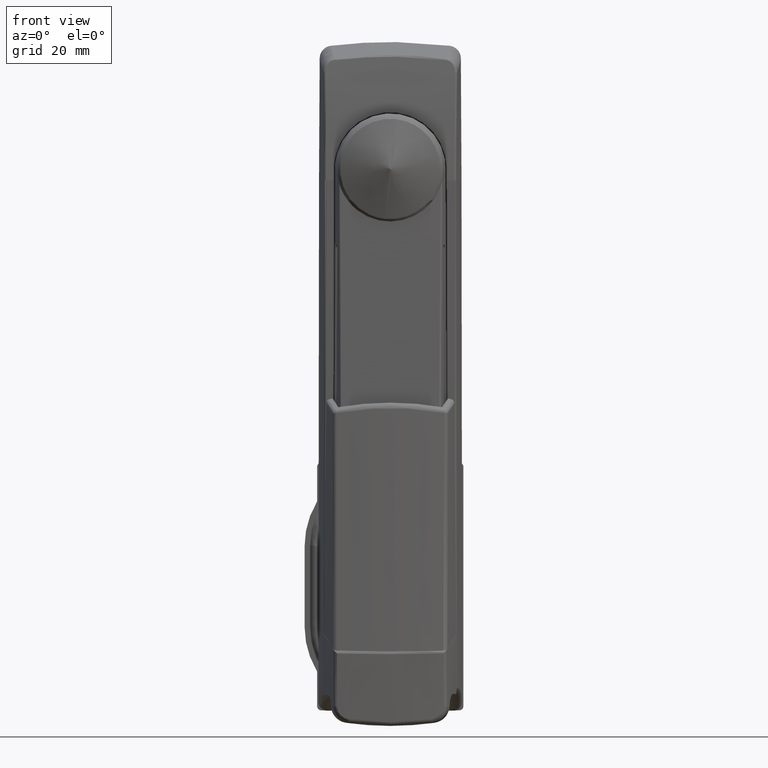
[diagram: clean part render]
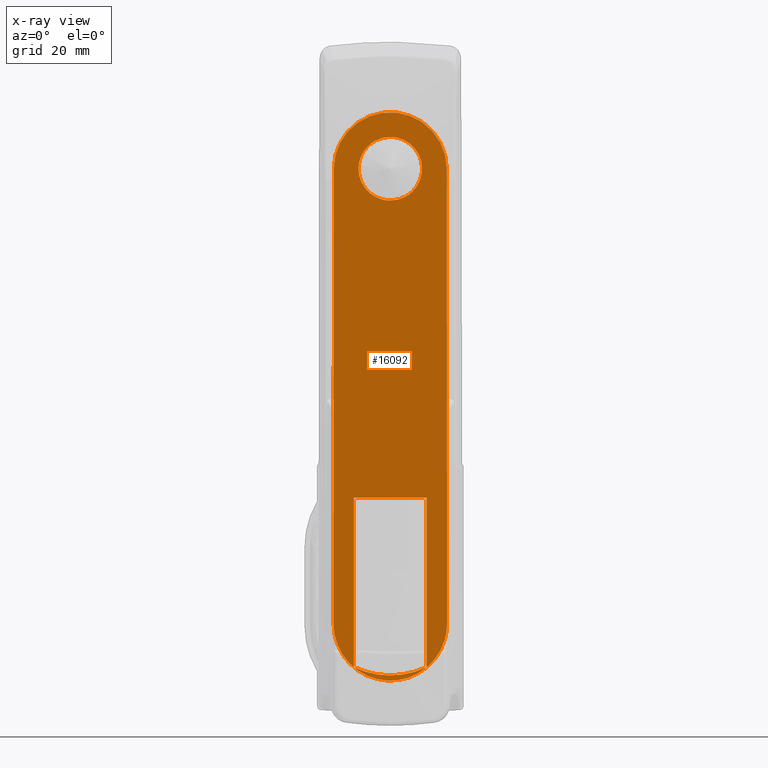
[diagram: x-ray — body ghosted, one internal face saturated and labeled with its STEP entity id]
A machine part, front view, then the same camera in x-ray: the body is ghosted and one INTERNAL B-rep face — a face not visible from any outside direction — is saturated and labeled: STEP entity #16092.
In plain terms, the highlighted face is a freeform B-spline surface patch.
Its self-contained STEP definition (entity closure, byte-faithful):
#14175=CARTESIAN_POINT('',(-5.500000000012050,0.0,7.600000000000000));
#14176=VERTEX_POINT('',#14175);
#14177=CARTESIAN_POINT('',(-5.500000000012003,5.326909800585702,5.420704011143132));
#14178=VERTEX_POINT('',#14177);
#14179=CARTESIAN_POINT('',(-5.500000000012050,0.0,7.600000000000000));
#14180=CARTESIAN_POINT('',(-5.500000000012049,3.109241593219904,7.600000000000000));
#14181=CARTESIAN_POINT('',(-5.500000000012049,5.326909800585733,5.420704011143168));
#14189=(BOUNDED_CURVE()B_SPLINE_CURVE(2,(#14179,#14180,#14181),.UNSPECIFIED.,.F.,.U.)B_SPLINE_CURVE_WITH_KNOTS((3,3),(0.500000000000000,0.623683225481971),.UNSPECIFIED.)CURVE()GEOMETRIC_REPRESENTATION_ITEM()RATIONAL_B_SPLINE_CURVE((1.0,0.855096087901422,0.853569641669309))REPRESENTATION_ITEM(''));
#14190=EDGE_CURVE('',#14176,#14178,#14189,.T.);
#14231=CARTESIAN_POINT('',(-5.500000000012003,-5.326909800585701,-5.420704011143132));
#14232=VERTEX_POINT('',#14231);
#14238=CARTESIAN_POINT('',(-5.500000000012003,-5.326909800585701,-5.420704011143132));
#14239=CARTESIAN_POINT('',(-5.500000000012050,-7.600000000000000,-3.186944994605080));
#14240=CARTESIAN_POINT('',(-5.500000000012050,-7.600000000000000,0.0));
#14241=CARTESIAN_POINT('',(-5.500000000012051,-7.600000000000000,7.600000000000000));
#14242=CARTESIAN_POINT('',(-5.500000000012050,0.0,7.600000000000000));
#14250=(BOUNDED_CURVE()B_SPLINE_CURVE(2,(#14238,#14239,#14240,#14241,#14242),.UNSPECIFIED.,.F.,.U.)B_SPLINE_CURVE_WITH_KNOTS((3,2,3),(0.123683225481971,0.250000000000000,0.500000000000000),.UNSPECIFIED.)CURVE()GEOMETRIC_REPRESENTATION_ITEM()RATIONAL_B_SPLINE_CURVE((0.853569641669309,0.852010693285126,1.0,0.707106781186547,1.0))REPRESENTATION_ITEM(''));
#14251=EDGE_CURVE('',#14232,#14176,#14250,.T.);
#14274=CARTESIAN_POINT('',(-5.500000000012050,0.0,-7.600000000000000));
#14275=VERTEX_POINT('',#14274);
#14276=CARTESIAN_POINT('',(-5.500000000012003,5.326909800585703,5.420704011143132));
#14277=CARTESIAN_POINT('',(-5.500000000012050,7.600000000000000,3.186944994605082));
#14278=CARTESIAN_POINT('',(-5.500000000012050,7.600000000000000,0.0));
#14279=CARTESIAN_POINT('',(-5.500000000012051,7.600000000000000,-7.600000000000000));
#14280=CARTESIAN_POINT('',(-5.500000000012050,0.0,-7.600000000000000));
#14288=(BOUNDED_CURVE()B_SPLINE_CURVE(2,(#14276,#14277,#14278,#14279,#14280),.UNSPECIFIED.,.F.,.U.)B_SPLINE_CURVE_WITH_KNOTS((3,2,3),(0.623683225481971,0.750000000000000,1.0),.UNSPECIFIED.)CURVE()GEOMETRIC_REPRESENTATION_ITEM()RATIONAL_B_SPLINE_CURVE((0.853569641669309,0.852010693285125,1.0,0.707106781186547,1.0))REPRESENTATION_ITEM(''));
#14289=EDGE_CURVE('',#14178,#14275,#14288,.T.);
#14291=CARTESIAN_POINT('',(-5.500000000012050,0.0,-7.600000000000000));
#14292=CARTESIAN_POINT('',(-5.500000000012050,-3.109241593219906,-7.600000000000001));
#14293=CARTESIAN_POINT('',(-5.500000000012051,-5.326909800585736,-5.420704011143169));
#14301=(BOUNDED_CURVE()B_SPLINE_CURVE(2,(#14291,#14292,#14293),.UNSPECIFIED.,.F.,.U.)B_SPLINE_CURVE_WITH_KNOTS((3,3),(0.0,0.123683225481971),.UNSPECIFIED.)CURVE()GEOMETRIC_REPRESENTATION_ITEM()RATIONAL_B_SPLINE_CURVE((1.0,0.855096087901422,0.853569641669309))REPRESENTATION_ITEM(''));
#14302=EDGE_CURVE('',#14275,#14232,#14301,.T.);
#15947=CARTESIAN_POINT('',(-5.500000000000090,-14.950142217047500,-129.305787019094310));
#15948=CARTESIAN_POINT('',(-5.500000000000090,14.950142946180160,-129.305787019094310));
#15949=CARTESIAN_POINT('',(-5.500000000000090,-14.950142217047500,20.293800862227119));
#15950=CARTESIAN_POINT('',(-5.500000000000090,14.950142946180160,20.293800862227119));
#15951=B_SPLINE_SURFACE_WITH_KNOTS('',1,1,((#15947,#15949),(#15948,#15950)),.UNSPECIFIED.,.F.,.F.,.U.,(2,2),(2,2),(0.0,29.900285163227661),(0.0,149.599587881321410),.UNSPECIFIED.);
#15952=CARTESIAN_POINT('',(-5.500000000000090,13.592274088300760,-108.899222409230010));
#15953=VERTEX_POINT('',#15952);
#15954=CARTESIAN_POINT('',(-5.500000000000090,13.499994861165360,-0.011779155682424));
#15955=VERTEX_POINT('',#15954);
#15956=CARTESIAN_POINT('',(-5.500000000000090,13.592274088300760,-108.899222409230010));
#15957=CARTESIAN_POINT('',(-5.500000000000090,13.591571165638960,-108.432619849802410));
#15958=CARTESIAN_POINT('',(-5.500000000000090,13.583585274704699,-103.122519607909400));
#15959=CARTESIAN_POINT('',(-5.500000000000090,13.570201202337261,-94.054019577383201));
#15960=CARTESIAN_POINT('',(-5.500000000000090,13.553241845598000,-81.693501625597392));
#15961=CARTESIAN_POINT('',(-5.500000000000090,13.539066881364240,-70.417715934326594));
#15962=CARTESIAN_POINT('',(-5.500000000000090,13.526519975982559,-59.141407620673000));
#15963=CARTESIAN_POINT('',(-5.500000000000090,13.516796155539200,-48.803285453039400));
#15964=CARTESIAN_POINT('',(-5.500000000000090,13.509954543279800,-39.873528040673399));
#15965=CARTESIAN_POINT('',(-5.500000000000090,13.505324707168860,-32.352446937734797));
#15966=CARTESIAN_POINT('',(-5.500000000000090,13.502237143331399,-25.771524061110700));
#15967=CARTESIAN_POINT('',(-5.500000000000090,13.500227188221000,-19.660903770915951));
#15968=CARTESIAN_POINT('',(-5.500000000000090,13.499104136707160,-14.020485555284480));
#15969=CARTESIAN_POINT('',(-5.500000000000090,13.498743041578720,-8.380564060496999));
#15970=CARTESIAN_POINT('',(-5.500000000000090,13.499093180012220,-3.711013230216085));
#15971=CARTESIAN_POINT('',(-5.500000000000090,13.499598976610040,-0.921506949291047));
#15972=CARTESIAN_POINT('',(-5.500000000000090,13.499994861165360,-0.011779155682443));
#15973=B_SPLINE_CURVE_WITH_KNOTS('',3,(#15956,#15957,#15958,#15959,#15960,#15961,#15962,#15963,#15964,#15965,#15966,#15967,#15968,#15969,#15970,#15971,#15972),.UNSPECIFIED.,.F.,.U.,(4,1,1,1,1,1,1,1,1,1,1,1,1,1,4),(0.0,0.012855555573557,0.146300715920764,0.249849895491047,0.353405111669571,0.456964333974477,0.560527858938167,0.638234692220055,0.702991479262319,0.767744005679142,0.819548169972390,0.871347464624640,0.923145272465501,0.974935748451005,1.0),.UNSPECIFIED.);
#15974=EDGE_CURVE('',#15953,#15955,#15973,.T.);
#15975=ORIENTED_EDGE('',*,*,#15974,.F.);
#15976=CARTESIAN_POINT('',(-5.500000000000090,-13.592274088314500,-108.899222418351800));
#15977=VERTEX_POINT('',#15976);
#15978=CARTESIAN_POINT('',(-5.500000000000090,13.592274088300760,-108.899222409230010));
#15979=CARTESIAN_POINT('',(-5.500000000000096,13.594241111740500,-110.012331068110800));
#15980=CARTESIAN_POINT('',(-5.500000000000092,13.363001144400410,-111.904764703902800));
#15981=CARTESIAN_POINT('',(-5.500000000000084,12.511827616035070,-114.388406198348310));
#15982=CARTESIAN_POINT('',(-5.500000000000103,11.369326778745039,-116.499920440071190));
#15983=CARTESIAN_POINT('',(-5.500000000000053,9.763696910365621,-118.509829922049510));
#15984=CARTESIAN_POINT('',(-5.500000000000101,7.828007538391771,-120.120405694323910));
#15985=CARTESIAN_POINT('',(-5.500000000000089,5.643611907989906,-121.359244837014400));
#15986=CARTESIAN_POINT('',(-5.500000000000097,3.169215623150294,-122.245714991645800));
#15987=CARTESIAN_POINT('',(-5.500000000000084,0.557486492588914,-122.584464005472300));
#15988=CARTESIAN_POINT('',(-5.500000000000090,-1.670564137390577,-122.447183216168000));
#15989=CARTESIAN_POINT('',(-5.500000000000092,-3.476737213376141,-122.099102736524600));
#15990=CARTESIAN_POINT('',(-5.500000000000092,-5.437123028742163,-121.450881551279290));
#15991=CARTESIAN_POINT('',(-5.500000000000089,-7.804018729810801,-120.184584860437500));
#15992=CARTESIAN_POINT('',(-5.500000000000091,-9.925748825280259,-118.351811656189000));
#15993=CARTESIAN_POINT('',(-5.500000000000091,-11.479676811544129,-116.305273179218900));
#15994=CARTESIAN_POINT('',(-5.500000000000090,-12.582501512553799,-114.237077081410110));
#15995=CARTESIAN_POINT('',(-5.500000000000092,-13.386477112518280,-111.793467203298210));
#15996=CARTESIAN_POINT('',(-5.500000000000084,-13.593970941130880,-109.900996940826300));
#15997=CARTESIAN_POINT('',(-5.500000000000090,-13.592274088314500,-108.899222418351800));
#15998=B_SPLINE_CURVE_WITH_KNOTS('',3,(#15978,#15979,#15980,#15981,#15982,#15983,#15984,#15985,#15986,#15987,#15988,#15989,#15990,#15991,#15992,#15993,#15994,#15995,#15996,#15997),.UNSPECIFIED.,.F.,.U.,(4,1,1,1,1,1,1,1,1,1,1,1,1,1,1,1,1,4),(0.000000226686332,3.339261199788609,5.676745020475707,7.847294134445392,10.518742815953591,13.357130834027050,15.360618068349529,18.032021019292070,21.204363647634040,23.207948841037972,24.710637977082332,26.714227733695711,29.385517602661231,32.724840909836708,35.062330652246693,37.065914226132342,39.737359702503397,42.742658786218151),.UNSPECIFIED.);
#15999=EDGE_CURVE('',#15953,#15977,#15998,.T.);
#16000=ORIENTED_EDGE('',*,*,#15999,.T.);
#16001=CARTESIAN_POINT('',(-5.500000000000090,-13.500000000000000,-2.517986E-013));
#16002=VERTEX_POINT('',#16001);
#16003=CARTESIAN_POINT('',(-5.500000000000090,-13.500000000000000,-2.706724E-013));
#16004=CARTESIAN_POINT('',(-5.500000000000090,-13.499600401071520,-0.913654178225550));
#16005=CARTESIAN_POINT('',(-5.500000000000090,-13.499093474425640,-3.707086844669295));
#16006=CARTESIAN_POINT('',(-5.500000000000090,-13.498743041578740,-8.380564060496999));
#16007=CARTESIAN_POINT('',(-5.500000000000090,-13.499104136707180,-14.020485555284480));
#16008=CARTESIAN_POINT('',(-5.500000000000090,-13.500227188221000,-19.660903770915951));
#16009=CARTESIAN_POINT('',(-5.500000000000090,-13.502237143331399,-25.771524061110700));
#16010=CARTESIAN_POINT('',(-5.500000000000090,-13.505324707168841,-32.352446937734797));
#16011=CARTESIAN_POINT('',(-5.500000000000090,-13.509954543279800,-39.873528040673399));
#16012=CARTESIAN_POINT('',(-5.500000000000090,-13.516796155539200,-48.803285453039400));
#16013=CARTESIAN_POINT('',(-5.500000000000090,-13.526519975982540,-59.141407620673000));
#16014=CARTESIAN_POINT('',(-5.500000000000090,-13.539066881364240,-70.417715934326495));
#16015=CARTESIAN_POINT('',(-5.500000000000090,-13.553241845598000,-81.693501625597293));
#16016=CARTESIAN_POINT('',(-5.500000000000090,-13.570201202337261,-94.054019577383201));
#16017=CARTESIAN_POINT('',(-5.500000000000090,-13.583585274709179,-103.122519610949990));
#16018=CARTESIAN_POINT('',(-5.500000000000090,-13.591571165648100,-108.432619855883800));
#16019=CARTESIAN_POINT('',(-5.500000000000090,-13.592274088314500,-108.899222418351800));
#16020=B_SPLINE_CURVE_WITH_KNOTS('',3,(#16003,#16004,#16005,#16006,#16007,#16008,#16009,#16010,#16011,#16012,#16013,#16014,#16015,#16016,#16017,#16018,#16019),.UNSPECIFIED.,.F.,.U.,(4,1,1,1,1,1,1,1,1,1,1,1,1,1,4),(0.0,0.025169706067404,0.076954580100113,0.128746785195123,0.180540476940701,0.232339037800547,0.297084560215391,0.361834342794821,0.439532770863131,0.543085093806235,0.646633114555955,0.750177129612617,0.853715108713993,0.987145834872773,1.0),.UNSPECIFIED.);
#16021=EDGE_CURVE('',#16002,#15977,#16020,.T.);
#16022=ORIENTED_EDGE('',*,*,#16021,.F.);
#16023=CARTESIAN_POINT('',(-5.500000000000090,-13.500000000000000,-2.517986E-013));
#16024=CARTESIAN_POINT('',(-5.500000000000092,-13.500047166429200,0.718102377106807));
#16025=CARTESIAN_POINT('',(-5.500000000000096,-13.385145153855129,2.154294337572027));
#16026=CARTESIAN_POINT('',(-5.500000000000091,-12.938456319821260,3.984657976198643));
#16027=CARTESIAN_POINT('',(-5.500000000000091,-12.261539061650989,5.738991317475451));
#16028=CARTESIAN_POINT('',(-5.500000000000099,-11.336556511394230,7.443721770971135));
#16029=CARTESIAN_POINT('',(-5.500000000000081,-9.767201473980794,9.454164935152082));
#16030=CARTESIAN_POINT('',(-5.500000000000135,-7.904159786884389,11.040657598168799));
#16031=CARTESIAN_POINT('',(-5.500000000000044,-5.791506099364750,12.253566984863591));
#16032=CARTESIAN_POINT('',(-5.500000000000115,-3.463543324621312,13.150954967364260));
#16033=CARTESIAN_POINT('',(-5.500000000000083,-0.880812873582227,13.565516799102870));
#16034=CARTESIAN_POINT('',(-5.500000000000092,1.721298128330564,13.452258423144370));
#16035=CARTESIAN_POINT('',(-5.500000000000079,3.727994980697775,13.026400781433891));
#16036=CARTESIAN_POINT('',(-5.500000000000169,5.906322140860833,12.215425143172890));
#16037=CARTESIAN_POINT('',(-5.499999999999939,8.210452176340802,10.871050040180769));
#16038=CARTESIAN_POINT('',(-5.500000000000156,10.385686860752910,8.797178899278412));
#16039=CARTESIAN_POINT('',(-5.500000000000090,12.049103605395750,6.303760594068161));
#16040=CARTESIAN_POINT('',(-5.500000000000074,13.202617615110199,3.413105524889151));
#16041=CARTESIAN_POINT('',(-5.500000000000100,13.501419694871570,1.203492219771534));
#16042=CARTESIAN_POINT('',(-5.500000000000090,13.499994861165360,-0.011779155682424));
#16043=B_SPLINE_CURVE_WITH_KNOTS('',3,(#16023,#16024,#16025,#16026,#16027,#16028,#16029,#16030,#16031,#16032,#16033,#16034,#16035,#16036,#16037,#16038,#16039,#16040,#16041,#16042),.UNSPECIFIED.,.F.,.U.,(4,1,1,1,1,1,1,1,1,1,1,1,1,1,1,1,1,4),(0.000000224651885,2.154315649602779,4.308628658299710,5.634359445827691,7.788709693574155,10.108746206200760,13.257426185590690,15.080235632215190,17.400267911989761,20.714618923988681,22.868965530357180,25.189033011191789,26.846208835148619,29.829005319740830,33.143369732110337,35.794872317966693,38.777794593819529,42.423546316754759),.UNSPECIFIED.);
#16044=EDGE_CURVE('',#16002,#15955,#16043,.T.);
#16045=ORIENTED_EDGE('',*,*,#16044,.T.);
#16046=EDGE_LOOP('',(#15975,#16000,#16022,#16045));
#16047=FACE_OUTER_BOUND('',#16046,.T.);
#16048=CARTESIAN_POINT('',(-5.500000000012050,8.699880441169059,-78.750003574183197));
#16049=VERTEX_POINT('',#16048);
#16050=CARTESIAN_POINT('',(-5.500000000012050,-8.700120717768870,-78.750003574183197));
#16051=VERTEX_POINT('',#16050);
#16052=CARTESIAN_POINT('',(-5.500000000012050,8.699880441169059,-78.750003574183197));
#16053=CARTESIAN_POINT('',(-5.500000000012050,-8.700120717768870,-78.750003574183197));
#16054=QUASI_UNIFORM_CURVE('',1,(#16052,#16053),.UNSPECIFIED.,.F.,.U.);
#16055=EDGE_CURVE('',#16049,#16051,#16054,.T.);
#16056=ORIENTED_EDGE('',*,*,#16055,.T.);
#16057=CARTESIAN_POINT('',(-5.500000000012050,-8.700120717768870,-119.250005925306990));
#16058=VERTEX_POINT('',#16057);
#16059=CARTESIAN_POINT('',(-5.500000000012050,-8.700120717768870,-78.750003574183197));
#16060=CARTESIAN_POINT('',(-5.500000000012050,-8.700120717768870,-119.250005925306990));
#16061=QUASI_UNIFORM_CURVE('',1,(#16059,#16060),.UNSPECIFIED.,.F.,.U.);
#16062=EDGE_CURVE('',#16051,#16058,#16061,.T.);
#16063=ORIENTED_EDGE('',*,*,#16062,.T.);
#16064=CARTESIAN_POINT('',(-5.500000000012050,8.699880441169041,-119.250005925306990));
#16065=VERTEX_POINT('',#16064);
#16066=CARTESIAN_POINT('',(-5.500000000012050,8.699880441169091,-119.250005925307090));
#16067=CARTESIAN_POINT('',(-5.500000000012050,-0.000120138299907,-123.473189043590070));
#16068=CARTESIAN_POINT('',(-5.500000000012050,-8.700120717768929,-119.250005925307090));
#16076=(BOUNDED_CURVE()B_SPLINE_CURVE(2,(#16066,#16067,#16068),.UNSPECIFIED.,.F.,.U.)CURVE()GEOMETRIC_REPRESENTATION_ITEM()QUASI_UNIFORM_CURVE()RATIONAL_B_SPLINE_CURVE((1.0,0.899611005298004,1.0))REPRESENTATION_ITEM(''));
#16077=EDGE_CURVE('',#16065,#16058,#16076,.T.);
#16078=ORIENTED_EDGE('',*,*,#16077,.F.);
#16079=CARTESIAN_POINT('',(-5.500000000012050,8.699880441169041,-119.250005925306990));
#16080=CARTESIAN_POINT('',(-5.500000000012050,8.699880441169059,-78.750003574183197));
#16081=QUASI_UNIFORM_CURVE('',1,(#16079,#16080),.UNSPECIFIED.,.F.,.U.);
#16082=EDGE_CURVE('',#16065,#16049,#16081,.T.);
#16083=ORIENTED_EDGE('',*,*,#16082,.T.);
#16084=EDGE_LOOP('',(#16056,#16063,#16078,#16083));
#16085=FACE_BOUND('',#16084,.T.);
#16086=ORIENTED_EDGE('',*,*,#14302,.F.);
#16087=ORIENTED_EDGE('',*,*,#14289,.F.);
#16088=ORIENTED_EDGE('',*,*,#14190,.F.);
#16089=ORIENTED_EDGE('',*,*,#14251,.F.);
#16090=EDGE_LOOP('',(#16086,#16087,#16088,#16089));
#16091=FACE_BOUND('',#16090,.T.);
#16092=ADVANCED_FACE('',(#16047,#16085,#16091),#15951,.F.);